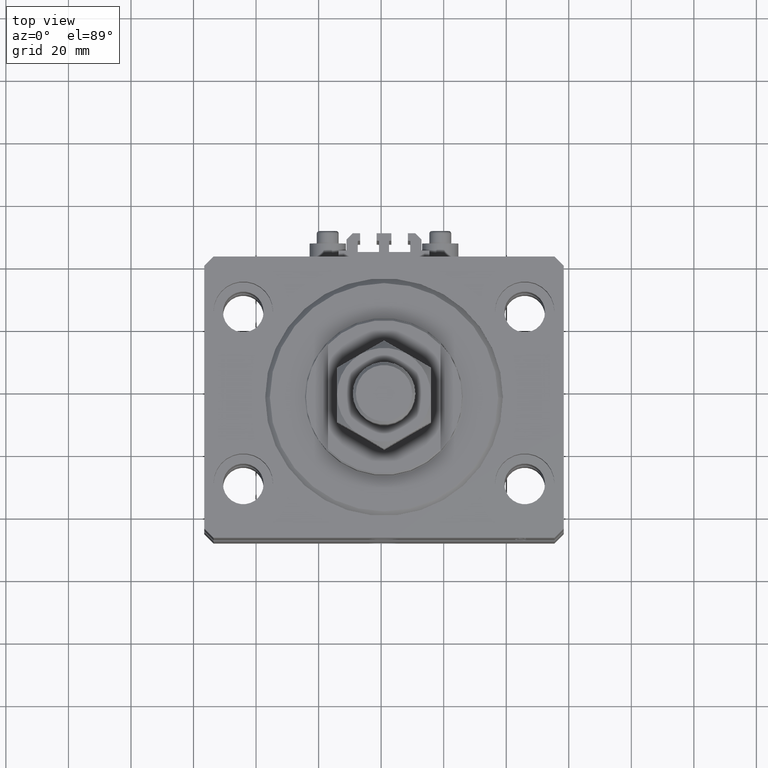
[diagram: clean part render]
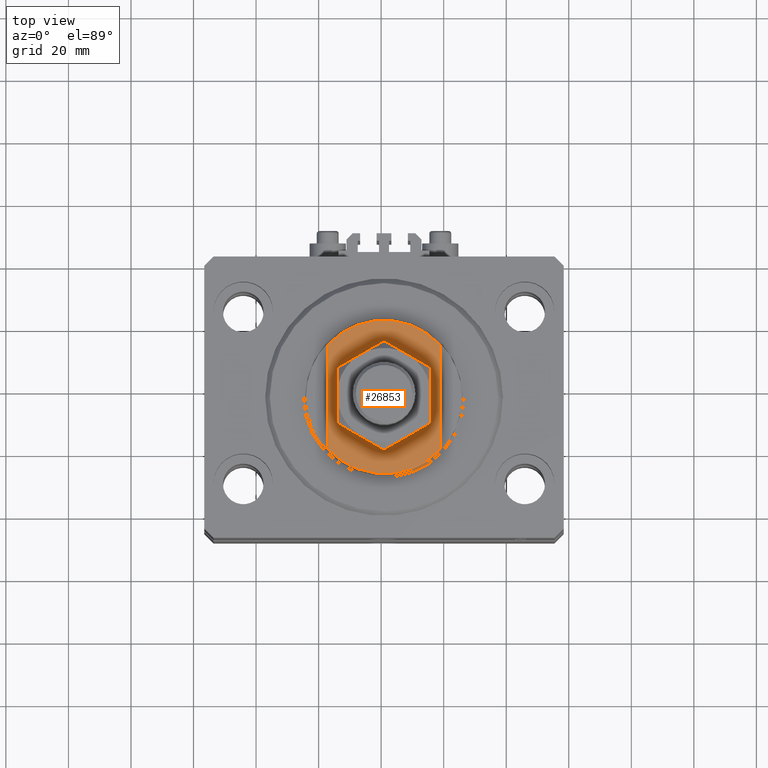
[diagram: same view with one face highlighted and labeled with its STEP entity id]
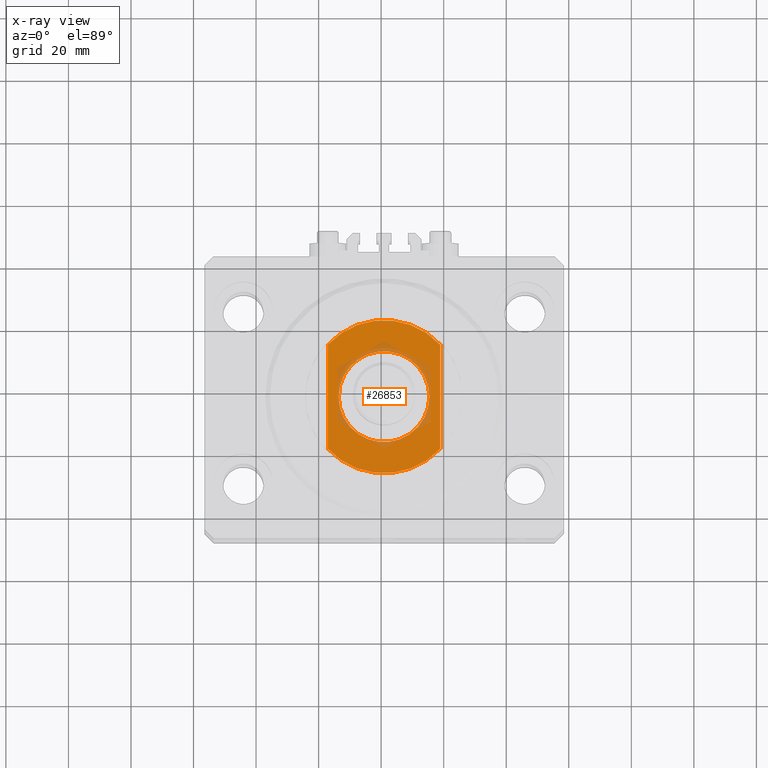
[diagram: x-ray of the same camera — body ghosted, the highlighted face saturated]
A machine part, top view. The second image highlights one B-rep face of the part: STEP entity #26853.
The next image is the same camera in x-ray: the body ghosted, the highlighted face saturated — about 14% of this face is hidden behind the body in this view.
In plain terms, the highlighted planar face has unit normal (0, 0, 1).
Its self-contained STEP definition (entity closure, byte-faithful):
#627 = CARTESIAN_POINT ( 'NONE',  ( 0.000000000000000000, 0.000000000000000000, -7.000000000000000000 ) ) ;
#1376 = ORIENTED_EDGE ( 'NONE', *, *, #3152, .T. ) ;
#1523 = DIRECTION ( 'NONE',  ( 0.000000000000000000, -1.000000000000000000, -0.000000000000000000 ) ) ;
#3152 = EDGE_CURVE ( 'NONE', #11875, #3446, #10250, .T. ) ;
#3446 = VERTEX_POINT ( 'NONE', #41446 ) ;
#4093 = CIRCLE ( 'NONE', #36108, 14.50000000000001421 ) ;
#5894 = CARTESIAN_POINT ( 'NONE',  ( 18.00000000000000000, -41.24318125460256113, -7.000000000000000000 ) ) ;
#8432 = EDGE_CURVE ( 'NONE', #15101, #13376, #15831, .T. ) ;
#9389 = ORIENTED_EDGE ( 'NONE', *, *, #21911, .T. ) ;
#9681 = CIRCLE ( 'NONE', #28534, 14.50000000000001421 ) ;
#9865 = AXIS2_PLACEMENT_3D ( 'NONE', #10031, #14647, #41356 ) ;
#10031 = CARTESIAN_POINT ( 'NONE',  ( 0.000000000000000000, 0.000000000000000000, -7.000000000000000000 ) ) ;
#10250 = LINE ( 'NONE', #5894, #17734 ) ;
#10641 = ORIENTED_EDGE ( 'NONE', *, *, #27041, .T. ) ;
#11228 = CARTESIAN_POINT ( 'NONE',  ( -18.00000000000000000, -41.24318125460256113, -7.000000000000000000 ) ) ;
#11289 = DIRECTION ( 'NONE',  ( -1.000000000000000000, 0.000000000000000000, 0.000000000000000000 ) ) ;
#11875 = VERTEX_POINT ( 'NONE', #41238 ) ;
#11898 = DIRECTION ( 'NONE',  ( -0.000000000000000000, -0.000000000000000000, 1.000000000000000000 ) ) ;
#11985 = DIRECTION ( 'NONE',  ( -0.000000000000000000, -1.000000000000000000, -0.000000000000000000 ) ) ;
#13224 = AXIS2_PLACEMENT_3D ( 'NONE', #27928, #43839, #43589 ) ;
#13376 = VERTEX_POINT ( 'NONE', #45996 ) ;
#14647 = DIRECTION ( 'NONE',  ( 0.000000000000000000, 0.000000000000000000, -1.000000000000000000 ) ) ;
#14787 = AXIS2_PLACEMENT_3D ( 'NONE', #19490, #30835, #11289 ) ;
#15101 = VERTEX_POINT ( 'NONE', #34100 ) ;
#15831 = LINE ( 'NONE', #11228, #49772 ) ;
#17236 = CIRCLE ( 'NONE', #14787, 24.49999999999996803 ) ;
#17734 = VECTOR ( 'NONE', #1523, 1000.000000000000000 ) ;
#19216 = ORIENTED_EDGE ( 'NONE', *, *, #50228, .T. ) ;
#19490 = CARTESIAN_POINT ( 'NONE',  ( 0.000000000000000000, 0.000000000000000000, -7.000000000000000000 ) ) ;
#21911 = EDGE_CURVE ( 'NONE', #23283, #25251, #9681, .T. ) ;
#22229 = CIRCLE ( 'NONE', #13224, 24.49999999999996803 ) ;
#22590 = FACE_BOUND ( 'NONE', #40601, .T. ) ;
#23283 = VERTEX_POINT ( 'NONE', #36441 ) ;
#23990 = DIRECTION ( 'NONE',  ( -0.000000000000000000, -0.000000000000000000, 1.000000000000000000 ) ) ;
#25251 = VERTEX_POINT ( 'NONE', #41828 ) ;
#26853 = ADVANCED_FACE ( 'NONE', ( #22590, #30585 ), #45211, .T. ) ;
#27041 = EDGE_CURVE ( 'NONE', #3446, #13376, #17236, .T. ) ;
#27928 = CARTESIAN_POINT ( 'NONE',  ( 0.000000000000000000, 0.000000000000000000, -7.000000000000000000 ) ) ;
#28534 = AXIS2_PLACEMENT_3D ( 'NONE', #47598, #11898, #42965 ) ;
#30585 = FACE_OUTER_BOUND ( 'NONE', #32009, .T. ) ;
#30835 = DIRECTION ( 'NONE',  ( 0.000000000000000000, 0.000000000000000000, -1.000000000000000000 ) ) ;
#31969 = DIRECTION ( 'NONE',  ( -1.000000000000000000, 0.000000000000000000, 0.000000000000000000 ) ) ;
#32009 = EDGE_LOOP ( 'NONE', ( #19216, #1376, #10641, #39648 ) ) ;
#34100 = CARTESIAN_POINT ( 'NONE',  ( -18.00000000000000000, 16.62077013859462227, -7.000000000000000000 ) ) ;
#36108 = AXIS2_PLACEMENT_3D ( 'NONE', #627, #23990, #31969 ) ;
#36441 = CARTESIAN_POINT ( 'NONE',  ( -14.50000000000001243, 0.000000000000000000, -7.000000000000000000 ) ) ;
#39648 = ORIENTED_EDGE ( 'NONE', *, *, #8432, .F. ) ;
#40601 = EDGE_LOOP ( 'NONE', ( #9389, #46627 ) ) ;
#41238 = CARTESIAN_POINT ( 'NONE',  ( 18.00000000000000000, 16.62077013859462227, -7.000000000000000000 ) ) ;
#41356 = DIRECTION ( 'NONE',  ( -1.000000000000000000, 0.000000000000000000, -0.000000000000000000 ) ) ;
#41446 = CARTESIAN_POINT ( 'NONE',  ( 18.00000000000000000, -16.62077013859462227, -7.000000000000000000 ) ) ;
#41828 = CARTESIAN_POINT ( 'NONE',  ( 14.50000000000001243, 1.775737858763663987E-15, -7.000000000000000000 ) ) ;
#42965 = DIRECTION ( 'NONE',  ( -1.000000000000000000, 0.000000000000000000, 0.000000000000000000 ) ) ;
#43589 = DIRECTION ( 'NONE',  ( -1.000000000000000000, 0.000000000000000000, 0.000000000000000000 ) ) ;
#43839 = DIRECTION ( 'NONE',  ( 0.000000000000000000, 0.000000000000000000, -1.000000000000000000 ) ) ;
#45211 = PLANE ( 'NONE',  #9865 ) ;
#45996 = CARTESIAN_POINT ( 'NONE',  ( -18.00000000000000000, -16.62077013859462227, -7.000000000000000000 ) ) ;
#46627 = ORIENTED_EDGE ( 'NONE', *, *, #46978, .T. ) ;
#46978 = EDGE_CURVE ( 'NONE', #25251, #23283, #4093, .T. ) ;
#47598 = CARTESIAN_POINT ( 'NONE',  ( 0.000000000000000000, 0.000000000000000000, -7.000000000000000000 ) ) ;
#49772 = VECTOR ( 'NONE', #11985, 1000.000000000000000 ) ;
#50228 = EDGE_CURVE ( 'NONE', #15101, #11875, #22229, .T. ) ;